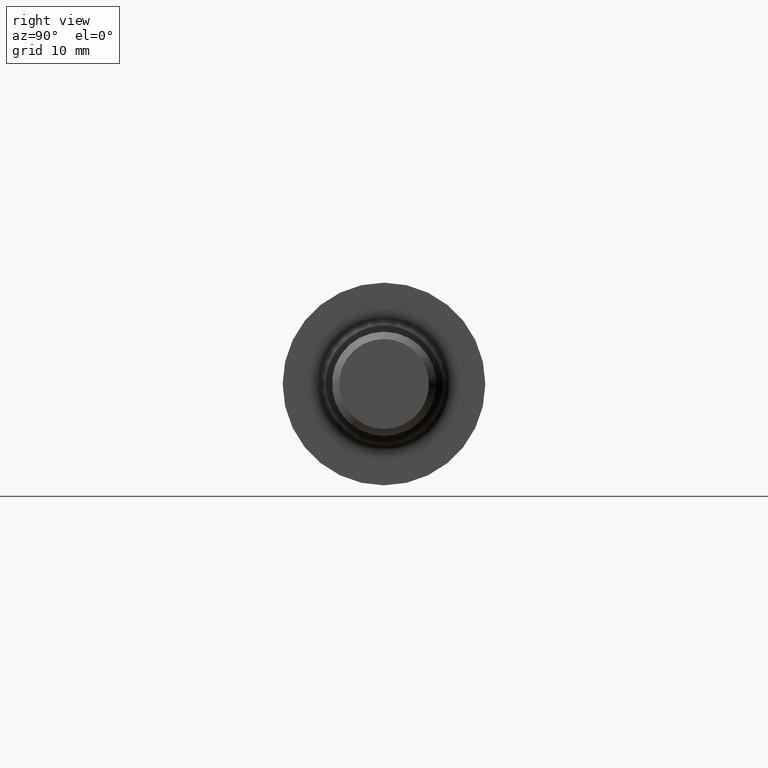
[diagram: clean part render]
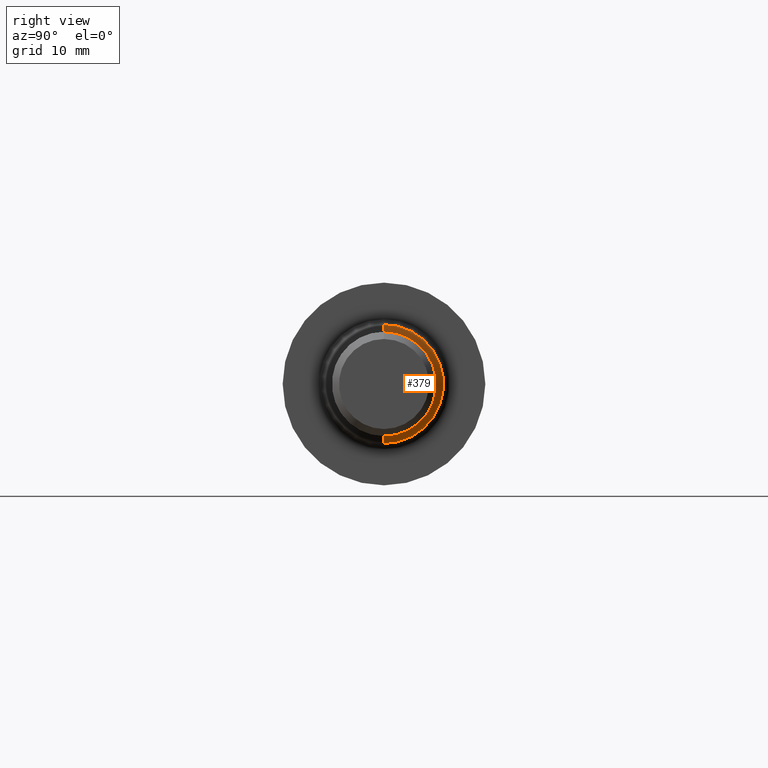
[diagram: same view with one face highlighted and labeled with its STEP entity id]
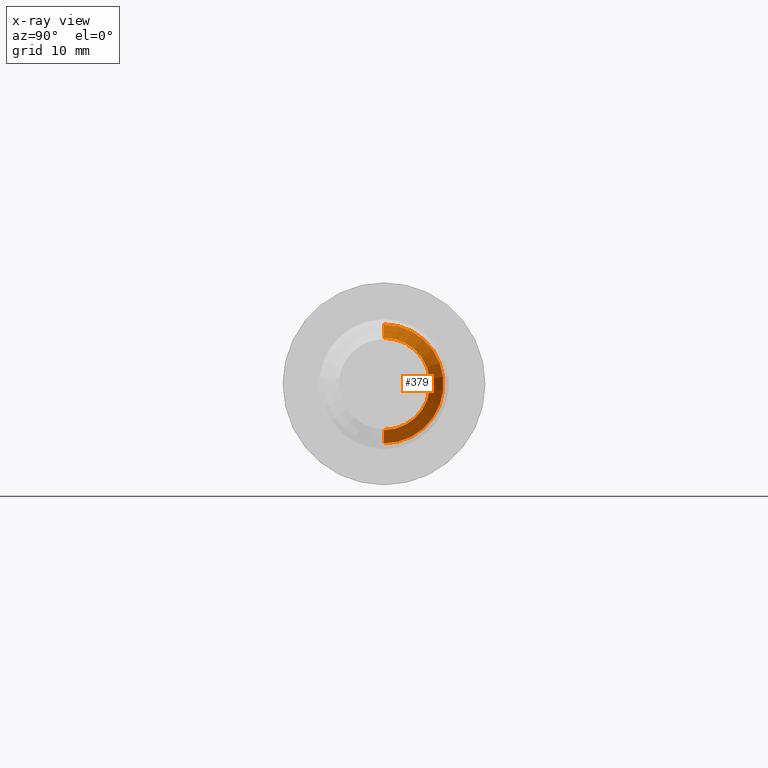
[diagram: x-ray of the same camera — body ghosted, the highlighted face saturated]
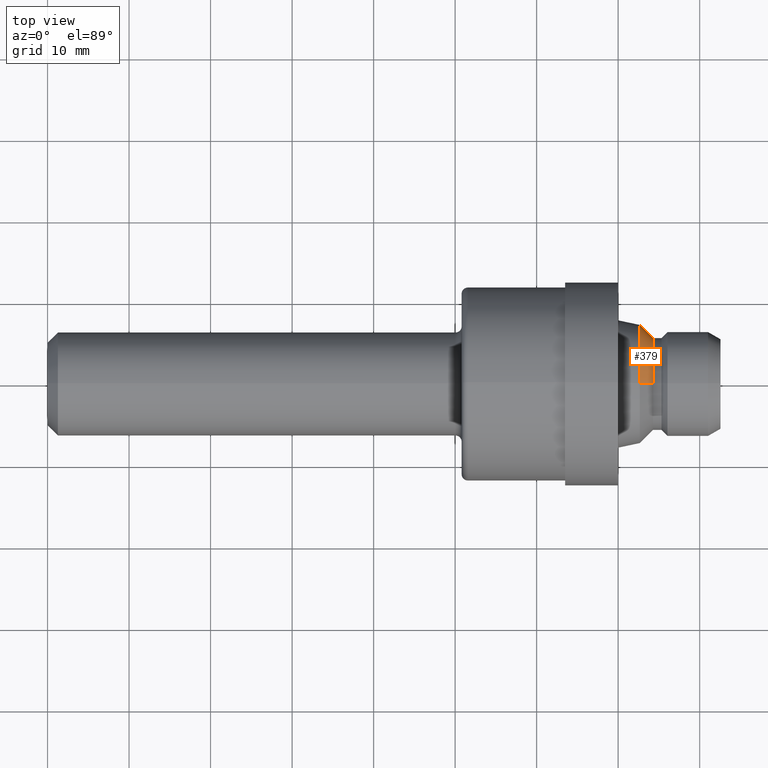
[diagram: same view with one face highlighted and labeled with its STEP entity id]
A machine part, right view. The second image highlights one B-rep face of the part: STEP entity #379.
The next image is the same camera in x-ray: the body ghosted, the highlighted face saturated — about 0% of this face is hidden behind the body in this view.
A second angle (top view) of the same face is appended — the face is thin or edge-on in the first view.
In plain terms, the highlighted conical surface has half-angle 45 deg.
Its self-contained STEP definition (entity closure, byte-faithful):
#36 = EDGE_CURVE ( 'NONE', #838, #94, #561, .T. ) ;
#76 = CARTESIAN_POINT ( 'NONE',  ( 2.924431561024649184, 2.724839128102861015E-17, -0.2225000000000000033 ) ) ;
#94 = VERTEX_POINT ( 'NONE', #757 ) ;
#102 = AXIS2_PLACEMENT_3D ( 'NONE', #724, #399, #654 ) ;
#131 = CARTESIAN_POINT ( 'NONE',  ( 2.859999999999999876, 0.0000000000000000000, 0.2869315610246476189 ) ) ;
#134 = LINE ( 'NONE', #439, #346 ) ;
#181 = ORIENTED_EDGE ( 'NONE', *, *, #692, .F. ) ;
#217 = ORIENTED_EDGE ( 'NONE', *, *, #716, .T. ) ;
#242 = DIRECTION ( 'NONE',  ( 0.0000000000000000000, 0.0000000000000000000, 1.000000000000000000 ) ) ;
#310 = CARTESIAN_POINT ( 'NONE',  ( 2.924431561024649184, 0.0000000000000000000, 0.0000000000000000000 ) ) ;
#326 = CARTESIAN_POINT ( 'NONE',  ( 2.924431561024649184, 0.0000000000000000000, 0.2225000000000000033 ) ) ;
#329 = LINE ( 'NONE', #597, #483 ) ;
#346 = VECTOR ( 'NONE', #766, 39.37007874015748143 ) ;
#360 = DIRECTION ( 'NONE',  ( -1.000000000000000000, -0.0000000000000000000, -0.0000000000000000000 ) ) ;
#379 = ADVANCED_FACE ( 'NONE', ( #615 ), #792, .T. ) ;
#399 = DIRECTION ( 'NONE',  ( -1.000000000000000000, -0.0000000000000000000, -0.0000000000000000000 ) ) ;
#416 = VERTEX_POINT ( 'NONE', #326 ) ;
#428 = CIRCLE ( 'NONE', #588, 0.2225000000000000033 ) ;
#439 = CARTESIAN_POINT ( 'NONE',  ( 2.924431561024649184, 0.0000000000000000000, 0.2225000000000000033 ) ) ;
#473 = EDGE_LOOP ( 'NONE', ( #667, #217, #551, #181 ) ) ;
#483 = VECTOR ( 'NONE', #663, 39.37007874015748143 ) ;
#533 = AXIS2_PLACEMENT_3D ( 'NONE', #753, #360, #819 ) ;
#541 = EDGE_CURVE ( 'NONE', #416, #750, #428, .T. ) ;
#551 = ORIENTED_EDGE ( 'NONE', *, *, #36, .F. ) ;
#561 = CIRCLE ( 'NONE', #533, 0.2869315610246476189 ) ;
#588 = AXIS2_PLACEMENT_3D ( 'NONE', #310, #696, #242 ) ;
#597 = CARTESIAN_POINT ( 'NONE',  ( 2.924431561024649184, 2.724839128102861015E-17, -0.2225000000000000033 ) ) ;
#615 = FACE_OUTER_BOUND ( 'NONE', #473, .T. ) ;
#654 = DIRECTION ( 'NONE',  ( 0.0000000000000000000, 0.0000000000000000000, 1.000000000000000000 ) ) ;
#663 = DIRECTION ( 'NONE',  ( -0.7071067811865547892, 8.659560562354844111E-17, -0.7071067811865402453 ) ) ;
#667 = ORIENTED_EDGE ( 'NONE', *, *, #541, .T. ) ;
#692 = EDGE_CURVE ( 'NONE', #416, #838, #134, .T. ) ;
#696 = DIRECTION ( 'NONE',  ( -1.000000000000000000, -0.0000000000000000000, -0.0000000000000000000 ) ) ;
#716 = EDGE_CURVE ( 'NONE', #750, #94, #329, .T. ) ;
#724 = CARTESIAN_POINT ( 'NONE',  ( 2.924431561024649184, 0.0000000000000000000, 0.0000000000000000000 ) ) ;
#750 = VERTEX_POINT ( 'NONE', #76 ) ;
#753 = CARTESIAN_POINT ( 'NONE',  ( 2.859999999999999876, 0.0000000000000000000, 0.0000000000000000000 ) ) ;
#757 = CARTESIAN_POINT ( 'NONE',  ( 2.859999999999999876, 3.513898177831881694E-17, -0.2869315610246476189 ) ) ;
#766 = DIRECTION ( 'NONE',  ( -0.7071067811865547892, 0.0000000000000000000, 0.7071067811865402453 ) ) ;
#792 = CONICAL_SURFACE ( 'NONE', #102, 0.2225000000000000033, 0.7853981633974380649 ) ;
#819 = DIRECTION ( 'NONE',  ( 0.0000000000000000000, 0.0000000000000000000, 1.000000000000000000 ) ) ;
#838 = VERTEX_POINT ( 'NONE', #131 ) ;